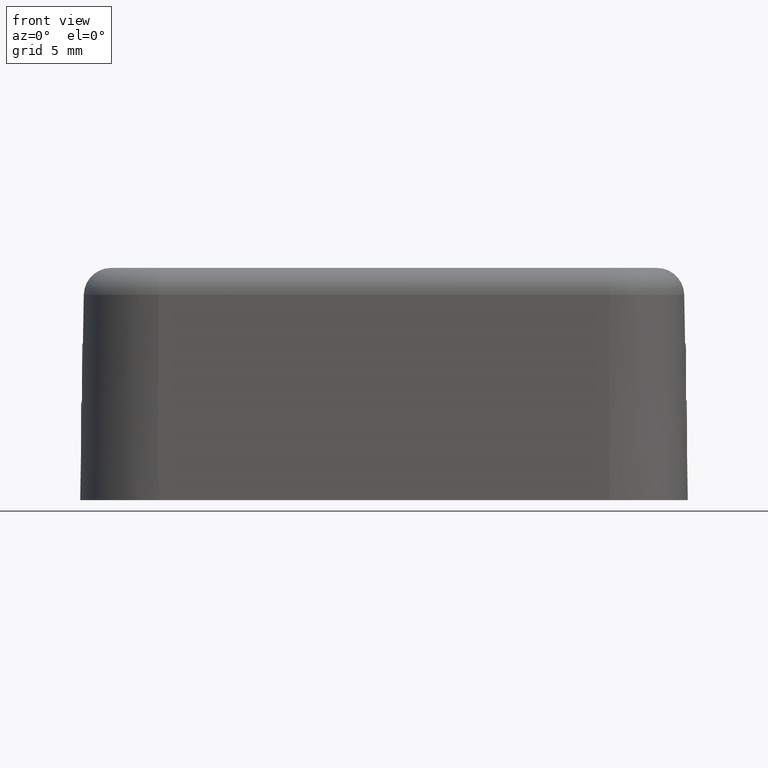
[diagram: clean part render]
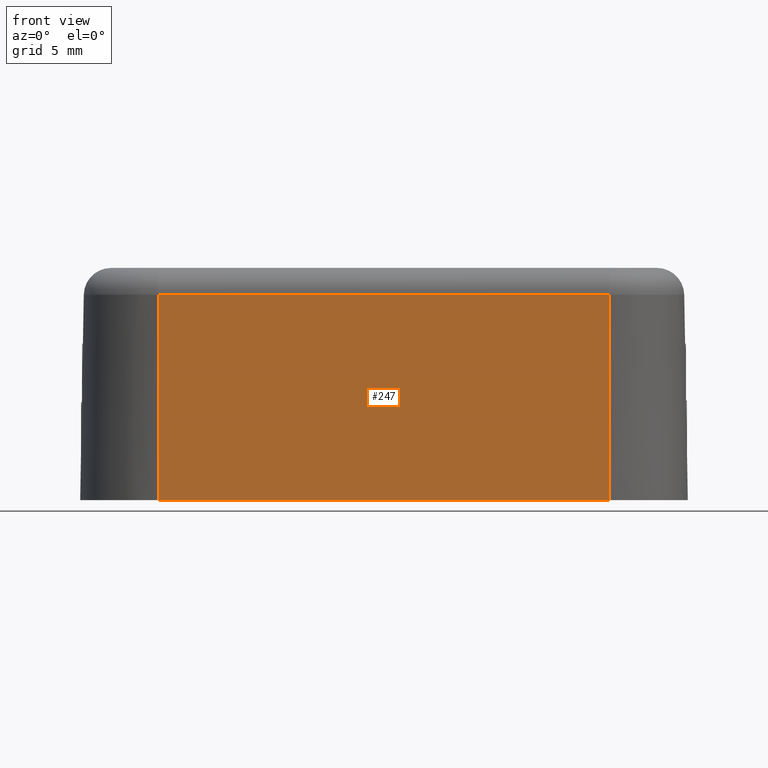
[diagram: same view with one face highlighted and labeled with its STEP entity id]
A machine part, front view. The second image highlights one B-rep face of the part: STEP entity #247.
In plain terms, the highlighted planar face has unit normal (0, 0.9998, -0.0175).
Its self-contained STEP definition (entity closure, byte-faithful):
#247=ADVANCED_FACE('',(#536),#537,.F.);
#536=FACE_OUTER_BOUND('',#941,.T.);
#537=PLANE('',#942);
#941=EDGE_LOOP('',(#2103,#2104,#2105,#2106));
#942=AXIS2_PLACEMENT_3D('',#2107,#2108,#2109);
#2103=ORIENTED_EDGE('',*,*,#3000,.T.);
#2104=ORIENTED_EDGE('',*,*,#3001,.T.);
#2105=ORIENTED_EDGE('',*,*,#3002,.F.);
#2106=ORIENTED_EDGE('',*,*,#2941,.T.);
#2107=CARTESIAN_POINT('',(15.05,-1.95,17.0));
#2108=DIRECTION('',(0.0,0.999847695156391,-0.0174524064372835));
#2109=DIRECTION('',(0.0,0.0174524064372835,0.999847695156391));
#2941=EDGE_CURVE('',#3544,#3542,#3545,.F.);
#3000=EDGE_CURVE('',#3542,#3649,#3651,.T.);
#3001=EDGE_CURVE('',#3649,#3652,#3653,.F.);
#3002=EDGE_CURVE('',#3544,#3652,#3654,.T.);
#3542=VERTEX_POINT('',#5044);
#3544=VERTEX_POINT('',#5046);
#3545=LINE('',#5047,#5048);
#3649=VERTEX_POINT('',#5186);
#3651=LINE('',#5188,#5189);
#3652=VERTEX_POINT('',#5190);
#3653=LINE('',#5191,#5192);
#3654=LINE('',#5193,#5194);
#5044=CARTESIAN_POINT('',(16.5,-2.2467361037797,0.0));
#5046=CARTESIAN_POINT('',(-16.5,-2.24673610377971,0.0));
#5047=CARTESIAN_POINT('',(15.05,-2.2467361037797,0.0));
#5048=VECTOR('',#5667,1000.0);
#5186=CARTESIAN_POINT('',(16.5,-1.98430086408141,15.0349048128745));
#5188=CARTESIAN_POINT('',(16.5,-1.95,17.0));
#5189=VECTOR('',#5774,1000.0);
#5190=CARTESIAN_POINT('',(-16.5,-1.98430086408142,15.0349048128745));
#5191=CARTESIAN_POINT('',(-16.5,-1.98430086408141,15.0349048128745));
#5192=VECTOR('',#5775,1000.0);
#5193=CARTESIAN_POINT('',(-16.5,-1.95,17.0));
#5194=VECTOR('',#5776,1000.0);
#5667=DIRECTION('',(-1.0,0.0,0.0));
#5774=DIRECTION('',(0.0,0.0174524064372835,0.999847695156391));
#5775=DIRECTION('',(1.0,0.0,0.0));
#5776=DIRECTION('',(0.0,0.0174524064372835,0.999847695156391));